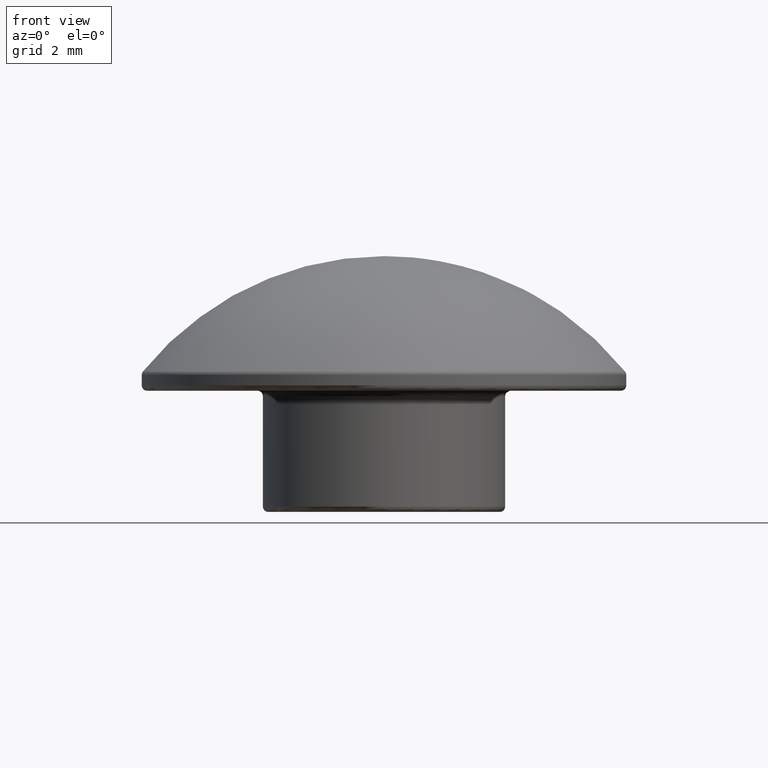
[diagram: clean part render]
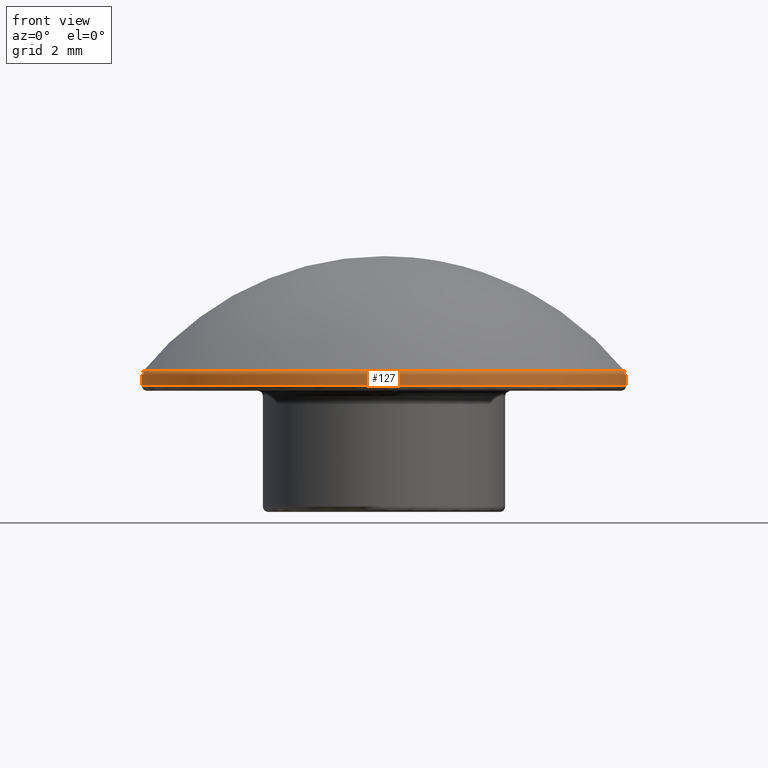
[diagram: same view with one face highlighted and labeled with its STEP entity id]
A machine part, front view. The second image highlights one B-rep face of the part: STEP entity #127.
In plain terms, the highlighted cylindrical surface (bore or boss wall) has radius 8.9999 mm, axis along (0, 0, -1).
Its self-contained STEP definition (entity closure, byte-faithful):
#20=CYLINDRICAL_SURFACE('',#143,8.99992883305196);
#24=FACE_BOUND('',#48,.T.);
#34=FACE_OUTER_BOUND('',#47,.T.);
#47=EDGE_LOOP('',(#102));
#48=EDGE_LOOP('',(#103));
#67=CIRCLE('',#141,8.99992883305196);
#69=CIRCLE('',#144,8.99992883305196);
#78=VERTEX_POINT('',#213);
#80=VERTEX_POINT('',#218);
#89=EDGE_CURVE('',#78,#78,#67,.T.);
#91=EDGE_CURVE('',#80,#80,#69,.T.);
#102=ORIENTED_EDGE('',*,*,#91,.F.);
#103=ORIENTED_EDGE('',*,*,#89,.F.);
#127=ADVANCED_FACE('',(#34,#24),#20,.T.);
#141=AXIS2_PLACEMENT_3D('',#214,#167,#168);
#143=AXIS2_PLACEMENT_3D('',#217,#171,#172);
#144=AXIS2_PLACEMENT_3D('',#219,#173,#174);
#167=DIRECTION('center_axis',(0.,0.,1.));
#168=DIRECTION('ref_axis',(1.,6.12323399573677E-17,0.));
#171=DIRECTION('center_axis',(0.,0.,-1.));
#172=DIRECTION('ref_axis',(1.,0.,0.));
#173=DIRECTION('center_axis',(0.,0.,-1.));
#174=DIRECTION('ref_axis',(1.,0.,0.));
#213=CARTESIAN_POINT('',(-8.99992883305196,-1.65326010569266E-15,7.08881178570999));
#214=CARTESIAN_POINT('Origin',(0.,0.,7.08881178570999));
#217=CARTESIAN_POINT('Origin',(0.,0.,7.159));
#218=CARTESIAN_POINT('',(-8.99992883305196,1.10217340379511E-15,6.7));
#219=CARTESIAN_POINT('Origin',(0.,0.,6.7));